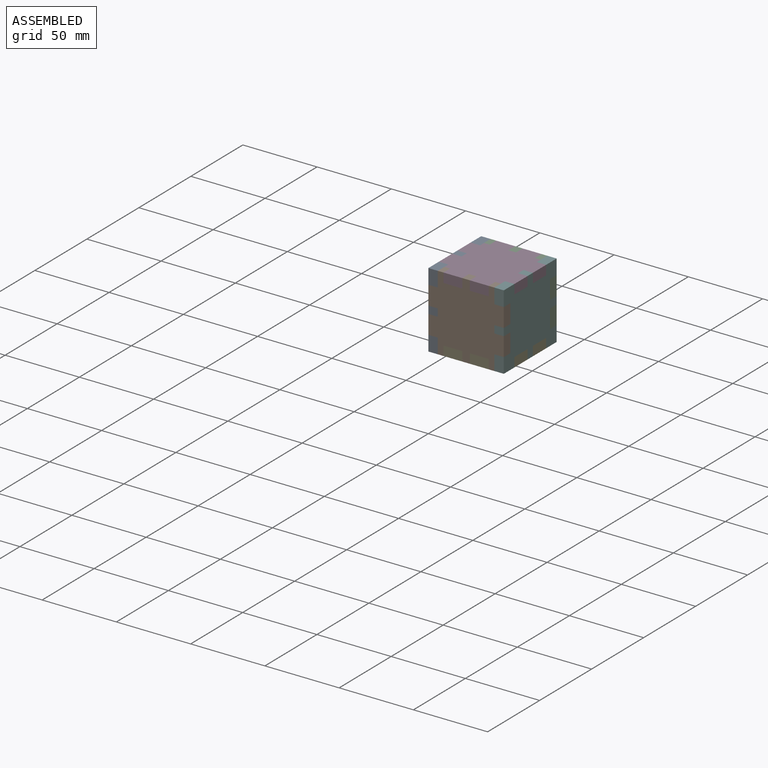
[diagram: assembled view]
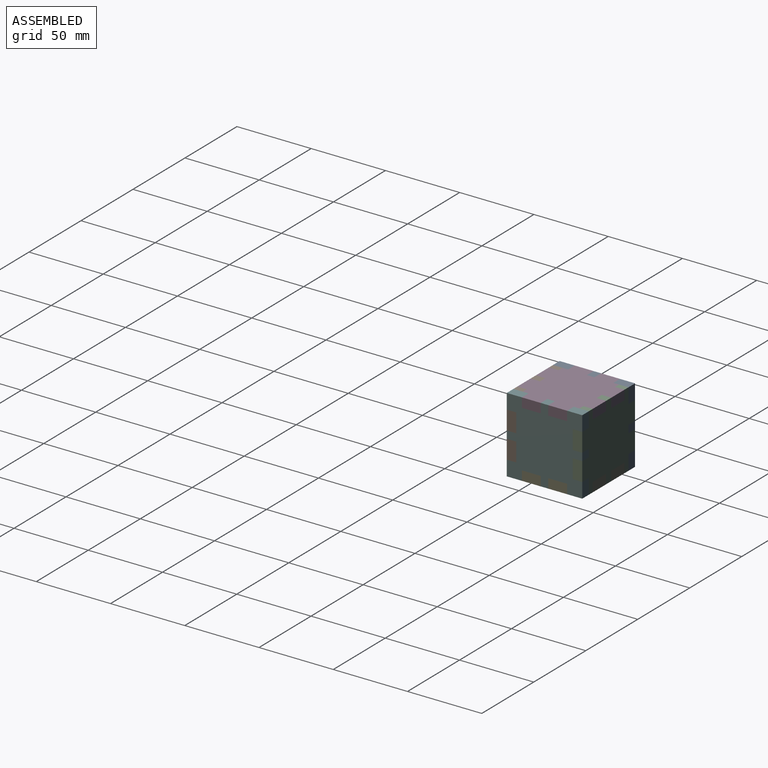
[diagram: assembled view, second angle]
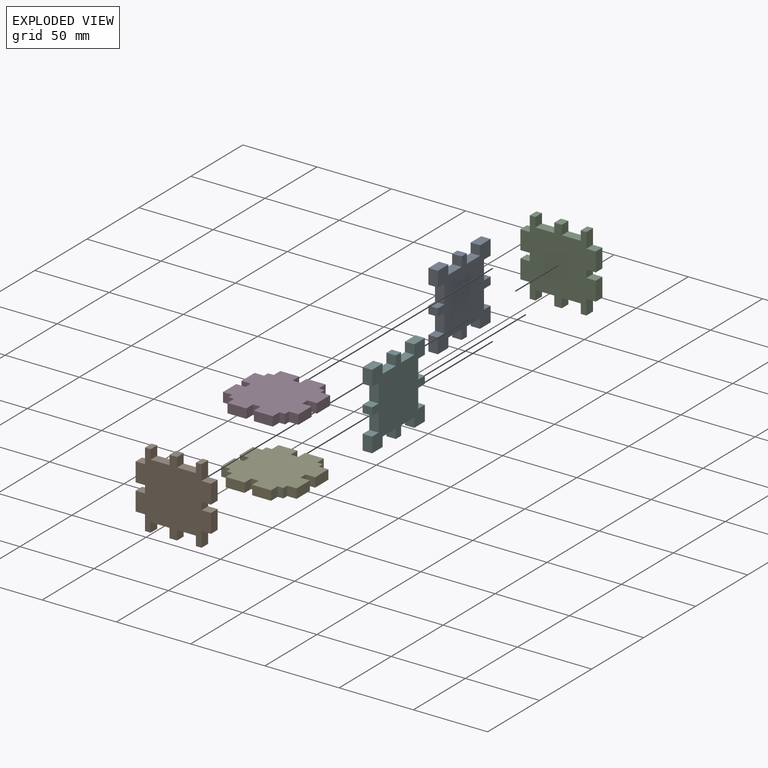
[diagram: exploded view]
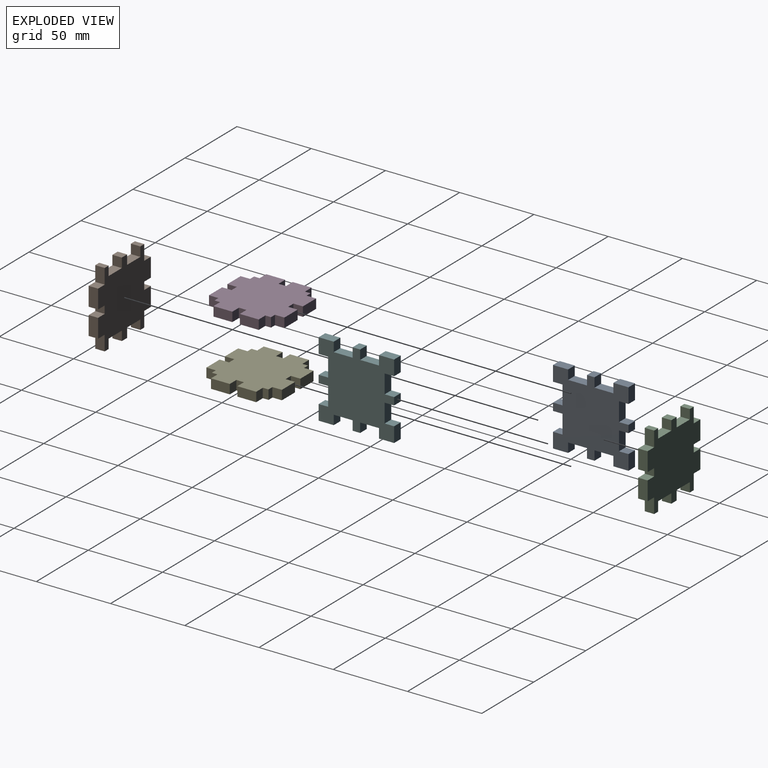
[diagram: exploded view, second angle]
ASSEMBLY  parts=6 mates=14
PART A: 38 faces, bbox 6.4x50.8x50.8 mm
  f0: plane 6.35x6.35mm, normal (0,0,-1), area 40.3mm2, adj f1,f35,f36,f37
  f1: plane 12.7x6.35mm, normal (0,-1,0), area 80.6mm2, adj f0,f2,f36,f37
  f2: plane 6.35x6.35mm, normal (0,0,1), area 40.3mm2, adj f1,f3,f36,f37
  f3: plane 6.35x5.08mm, normal (0,-1,0), area 32.3mm2, adj f2,f4,f36,f37
  f4: plane 6.35x6.35mm, normal (0,0,-1), area 40.3mm2, adj f3,f5,f36,f37
  f5: plane 12.7x6.35mm, normal (0,-1,0), area 80.6mm2, adj f4,f6,f36,f37
  f6: plane 6.35x6.35mm, normal (0,0,1), area 40.3mm2, adj f5,f7,f36,f37
  f7: plane 10.16x6.35mm, normal (0,-1,0), area 64.5mm2, adj f6,f8,f36,f37
  f8: plane 10.16x6.35mm, normal (0,0,-1), area 64.5mm2, adj f7,f9,f36,f37
  f9: plane 6.35x6.35mm, normal (0,1,0), area 40.3mm2, adj f8,f10,f36,f37
  f10: plane 12.7x6.35mm, normal (0,0,-1), area 80.6mm2, adj f9,f11,f36,f37
  f11: plane 6.35x6.35mm, normal (0,-1,0), area 40.3mm2, adj f10,f12,f36,f37
  f12: plane 6.35x5.08mm, normal (0,0,-1), area 32.3mm2, adj f11,f13,f36,f37
  f13: plane 6.35x6.35mm, normal (0,1,0), area 40.3mm2, adj f12,f14,f36,f37
  f14: plane 12.7x6.35mm, normal (0,0,-1), area 80.6mm2, adj f13,f15,f36,f37
  f15: plane 6.35x6.35mm, normal (0,-1,0), area 40.3mm2, adj f14,f16,f36,f37
  f16: plane 10.16x6.35mm, normal (0,0,-1), area 64.5mm2, adj f15,f17,f36,f37
  f17: plane 10.16x6.35mm, normal (0,1,0), area 64.5mm2, adj f16,f18,f36,f37
  f18: plane 6.35x6.35mm, normal (0,0,1), area 40.3mm2, adj f17,f19,f36,f37
  f19: plane 12.7x6.35mm, normal (0,1,0), area 80.6mm2, adj f18,f20,f36,f37
  f20: plane 6.35x6.35mm, normal (0,0,-1), area 40.3mm2, adj f19,f21,f36,f37
  f21: plane 6.35x5.08mm, normal (0,1,0), area 32.3mm2, adj f20,f22,f36,f37
  f22: plane 6.35x6.35mm, normal (0,0,1), area 40.3mm2, adj f21,f23,f36,f37
  f23: plane 12.7x6.35mm, normal (0,1,0), area 80.6mm2, adj f22,f24,f36,f37
  f24: plane 6.35x6.35mm, normal (0,0,-1), area 40.3mm2, adj f23,f25,f36,f37
  f25: plane 10.16x6.35mm, normal (0,1,0), area 64.5mm2, adj f24,f26,f36,f37
  f26: plane 10.16x6.35mm, normal (0,0,1), area 64.5mm2, adj f25,f27,f36,f37
  f27: plane 6.35x6.35mm, normal (0,-1,0), area 40.3mm2, adj f26,f28,f36,f37
  f28: plane 12.7x6.35mm, normal (0,0,1), area 80.6mm2, adj f27,f29,f36,f37
  f29: plane 6.35x6.35mm, normal (0,1,0), area 40.3mm2, adj f28,f30,f36,f37
  f30: plane 6.35x5.08mm, normal (0,0,1), area 32.3mm2, adj f29,f31,f36,f37
  f31: plane 6.35x6.35mm, normal (0,-1,0), area 40.3mm2, adj f30,f32,f36,f37
  f32: plane 12.7x6.35mm, normal (0,0,1), area 80.6mm2, adj f31,f33,f36,f37
  f33: plane 6.35x6.35mm, normal (0,1,0), area 40.3mm2, adj f32,f34,f36,f37
  f34: plane 10.16x6.35mm, normal (0,0,1), area 64.5mm2, adj f33,f35,f36,f37
  f35: plane 10.16x6.35mm, normal (0,-1,0), area 64.5mm2, adj f0,f34,f36,f37
  f36: plane 50.8x50.8mm, normal (1,0,0), area 1935.5mm2, adj f0,f1,f2,f3,f4,f5,f6,f7
  f37: plane 50.8x50.8mm, normal (-1,0,0), area 1935.5mm2, adj f0,f1,f2,f3,f4,f5,f6,f7
PART B: 38 faces, bbox 50.8x6.4x50.8 mm
  f0: plane 6.35x3.81mm, normal (-1,0,0), area 24.2mm2, adj f1,f35,f36,f37
  f1: plane 6.35x6.35mm, normal (0,0,-1), area 40.3mm2, adj f0,f2,f36,f37
  f2: plane 12.7x6.35mm, normal (-1,0,0), area 80.6mm2, adj f1,f3,f36,f37
  f3: plane 6.35x6.35mm, normal (0,0,1), area 40.3mm2, adj f2,f4,f36,f37
  f4: plane 6.35x5.08mm, normal (-1,0,0), area 32.3mm2, adj f3,f5,f36,f37
  f5: plane 6.35x6.35mm, normal (0,0,-1), area 40.3mm2, adj f4,f6,f36,f37
  f6: plane 12.7x6.35mm, normal (-1,0,0), area 80.6mm2, adj f5,f7,f36,f37
  f7: plane 6.35x6.35mm, normal (0,0,1), area 40.3mm2, adj f6,f8,f36,f37
  f8: plane 6.35x3.81mm, normal (-1,0,0), area 24.2mm2, adj f7,f9,f36,f37
  f9: plane 10.16x6.35mm, normal (0,0,-1), area 64.5mm2, adj f8,f10,f36,f37
  f10: plane 6.35x6.35mm, normal (-1,0,0), area 40.3mm2, adj f9,f11,f36,f37
  f11: plane 12.7x6.35mm, normal (0,0,-1), area 80.6mm2, adj f10,f12,f36,f37
  f12: plane 6.35x6.35mm, normal (1,0,0), area 40.3mm2, adj f11,f13,f36,f37
  f13: plane 6.35x5.08mm, normal (0,0,-1), area 32.3mm2, adj f12,f14,f36,f37
  f14: plane 6.35x6.35mm, normal (-1,0,0), area 40.3mm2, adj f13,f15,f36,f37
  f15: plane 12.7x6.35mm, normal (0,0,-1), area 80.6mm2, adj f14,f16,f36,f37
  f16: plane 6.35x6.35mm, normal (1,0,0), area 40.3mm2, adj f15,f17,f36,f37
  f17: plane 10.16x6.35mm, normal (0,0,-1), area 64.5mm2, adj f16,f18,f36,f37
  f18: plane 6.35x3.81mm, normal (1,0,0), area 24.2mm2, adj f17,f19,f36,f37
  f19: plane 6.35x6.35mm, normal (0,0,1), area 40.3mm2, adj f18,f20,f36,f37
  f20: plane 12.7x6.35mm, normal (1,0,0), area 80.6mm2, adj f19,f21,f36,f37
  f21: plane 6.35x6.35mm, normal (0,0,-1), area 40.3mm2, adj f20,f22,f36,f37
  f22: plane 6.35x5.08mm, normal (1,0,0), area 32.3mm2, adj f21,f23,f36,f37
  f23: plane 6.35x6.35mm, normal (0,0,1), area 40.3mm2, adj f22,f24,f36,f37
  f24: plane 12.7x6.35mm, normal (1,0,0), area 80.6mm2, adj f23,f25,f36,f37
  f25: plane 6.35x6.35mm, normal (0,0,-1), area 40.3mm2, adj f24,f26,f36,f37
  f26: plane 6.35x3.81mm, normal (1,0,0), area 24.2mm2, adj f25,f27,f36,f37
  f27: plane 10.16x6.35mm, normal (0,0,1), area 64.5mm2, adj f26,f28,f36,f37
  f28: plane 6.35x6.35mm, normal (1,0,0), area 40.3mm2, adj f27,f29,f36,f37
  f29: plane 12.7x6.35mm, normal (0,0,1), area 80.6mm2, adj f28,f30,f36,f37
  f30: plane 6.35x6.35mm, normal (-1,0,0), area 40.3mm2, adj f29,f31,f36,f37
  f31: plane 6.35x5.08mm, normal (0,0,1), area 32.3mm2, adj f30,f32,f36,f37
  f32: plane 6.35x6.35mm, normal (1,0,0), area 40.3mm2, adj f31,f33,f36,f37
  f33: plane 12.7x6.35mm, normal (0,0,1), area 80.6mm2, adj f32,f34,f36,f37
  f34: plane 6.35x6.35mm, normal (-1,0,0), area 40.3mm2, adj f33,f35,f36,f37
  f35: plane 10.16x6.35mm, normal (0,0,1), area 64.5mm2, adj f0,f34,f36,f37
  f36: plane 50.8x50.8mm, normal (0,-1,0), area 1935.5mm2, adj f0,f1,f2,f3,f4,f5,f6,f7
  f37: plane 50.8x50.8mm, normal (0,1,0), area 1935.5mm2, adj f0,f1,f2,f3,f4,f5,f6,f7
PART C: same geometry as B
PART D: 38 faces, bbox 50.8x6.4x50.8 mm
  f0: plane 6.35x3.81mm, normal (-1,0,0), area 24.2mm2, adj f1,f35,f36,f37
  f1: plane 6.35x6.35mm, normal (0,0,1), area 40.3mm2, adj f0,f2,f36,f37
  f2: plane 12.7x6.35mm, normal (-1,0,0), area 80.6mm2, adj f1,f3,f36,f37
  f3: plane 6.35x6.35mm, normal (0,0,-1), area 40.3mm2, adj f2,f4,f36,f37
  f4: plane 6.35x5.08mm, normal (-1,0,0), area 32.3mm2, adj f3,f5,f36,f37
  f5: plane 6.35x6.35mm, normal (0,0,1), area 40.3mm2, adj f4,f6,f36,f37
  f6: plane 12.7x6.35mm, normal (-1,0,0), area 80.6mm2, adj f5,f7,f36,f37
  f7: plane 6.35x6.35mm, normal (0,0,-1), area 40.3mm2, adj f6,f8,f36,f37
  f8: plane 6.35x3.81mm, normal (-1,0,0), area 24.2mm2, adj f7,f9,f36,f37
  f9: plane 6.35x3.81mm, normal (0,0,-1), area 24.2mm2, adj f8,f10,f36,f37
  f10: plane 6.35x6.35mm, normal (-1,0,0), area 40.3mm2, adj f9,f11,f36,f37
  f11: plane 12.7x6.35mm, normal (0,0,-1), area 80.6mm2, adj f10,f12,f36,f37
  f12: plane 6.35x6.35mm, normal (1,0,0), area 40.3mm2, adj f11,f13,f36,f37
  f13: plane 6.35x5.08mm, normal (0,0,-1), area 32.3mm2, adj f12,f14,f36,f37
  f14: plane 6.35x6.35mm, normal (-1,0,0), area 40.3mm2, adj f13,f15,f36,f37
  f15: plane 12.7x6.35mm, normal (0,0,-1), area 80.6mm2, adj f14,f16,f36,f37
  f16: plane 6.35x6.35mm, normal (1,0,0), area 40.3mm2, adj f15,f17,f36,f37
  f17: plane 6.35x3.81mm, normal (0,0,-1), area 24.2mm2, adj f16,f18,f36,f37
  f18: plane 6.35x3.81mm, normal (1,0,0), area 24.2mm2, adj f17,f19,f36,f37
  f19: plane 6.35x6.35mm, normal (0,0,-1), area 40.3mm2, adj f18,f20,f36,f37
  f20: plane 12.7x6.35mm, normal (1,0,0), area 80.6mm2, adj f19,f21,f36,f37
  f21: plane 6.35x6.35mm, normal (0,0,1), area 40.3mm2, adj f20,f22,f36,f37
  f22: plane 6.35x5.08mm, normal (1,0,0), area 32.3mm2, adj f21,f23,f36,f37
  f23: plane 6.35x6.35mm, normal (0,0,-1), area 40.3mm2, adj f22,f24,f36,f37
  f24: plane 12.7x6.35mm, normal (1,0,0), area 80.6mm2, adj f23,f25,f36,f37
  f25: plane 6.35x6.35mm, normal (0,0,1), area 40.3mm2, adj f24,f26,f36,f37
  f26: plane 6.35x3.81mm, normal (1,0,0), area 24.2mm2, adj f25,f27,f36,f37
  f27: plane 6.35x3.81mm, normal (0,0,1), area 24.2mm2, adj f26,f28,f36,f37
  f28: plane 6.35x6.35mm, normal (1,0,0), area 40.3mm2, adj f27,f29,f36,f37
  f29: plane 12.7x6.35mm, normal (0,0,1), area 80.6mm2, adj f28,f30,f36,f37
  f30: plane 6.35x6.35mm, normal (-1,0,0), area 40.3mm2, adj f29,f31,f36,f37
  f31: plane 6.35x5.08mm, normal (0,0,1), area 32.3mm2, adj f30,f32,f36,f37
  f32: plane 6.35x6.35mm, normal (1,0,0), area 40.3mm2, adj f31,f33,f36,f37
  f33: plane 12.7x6.35mm, normal (0,0,1), area 80.6mm2, adj f32,f34,f36,f37
  f34: plane 6.35x6.35mm, normal (-1,0,0), area 40.3mm2, adj f33,f35,f36,f37
  f35: plane 6.35x3.81mm, normal (0,0,1), area 24.2mm2, adj f0,f34,f36,f37
  f36: plane 50.8x50.8mm, normal (0,-1,0), area 2096.8mm2, adj f0,f1,f2,f3,f4,f5,f6,f7
  f37: plane 50.8x50.8mm, normal (0,1,0), area 2096.8mm2, adj f0,f1,f2,f3,f4,f5,f6,f7
PART E: same geometry as D
PART F: same geometry as A
PLACE A t=(-9.84,10.91,-9.84)mm
PLACE B rot(axis=(0,1,0),90deg) t=(15.56,-8.14,-9.84)mm
PLACE C rot(axis=(0,1,0),90deg) t=(15.56,36.31,-9.84)mm
PLACE D rot(axis=(0,-0.71,-0.71),180deg) t=(15.56,10.91,15.56)mm
PLACE E rot(axis=(-1,0,0),90deg) t=(15.56,10.91,-35.24)mm
PLACE F t=(34.61,10.91,-9.84)mm
MATE planar C.f37 <-> A.f25  axis (0,1,0) through (15.56,36.31,-9.84)mm
MATE planar F.f26 <-> D.f37  axis (0,0,1) through (37.79,31.23,15.56)mm
MATE planar D.f15 <-> B.f36  axis (0,-1,0) through (6.67,-14.49,12.38)mm
MATE planar A.f37 <-> E.f6  axis (-1,0,0) through (-9.84,10.91,-9.84)mm
MATE planar F.f36 <-> C.f33  axis (1,0,0) through (40.96,19.8,9.21)mm
MATE planar B.f36 <-> A.f7  axis (0,-1,0) through (18.1,-14.49,9.21)mm
MATE planar E.f37 <-> A.f16  axis (0,0,-1) through (13.02,29.96,-35.24)mm
MATE planar D.f20 <-> A.f37  axis (-1,0,0) through (-9.84,2.02,12.38)mm
MATE planar F.f25 <-> C.f37  axis (0,1,0) through (37.79,36.31,10.48)mm
MATE planar C.f15 <-> A.f37  axis (-1,0,0) through (-9.84,29.96,-18.73)mm
MATE planar B.f10 <-> A.f0  axis (0,0,1) through (-6.66,-11.32,5.4)mm
MATE planar B.f11 <-> A.f37  axis (-1,0,0) through (-9.84,-11.32,-0.95)mm
MATE planar E.f15 <-> B.f36  axis (0,-1,0) through (30.8,-14.49,-35.24)mm
MATE planar C.f16 <-> A.f18  axis (0,0,-1) through (-6.66,33.13,-25.08)mm
